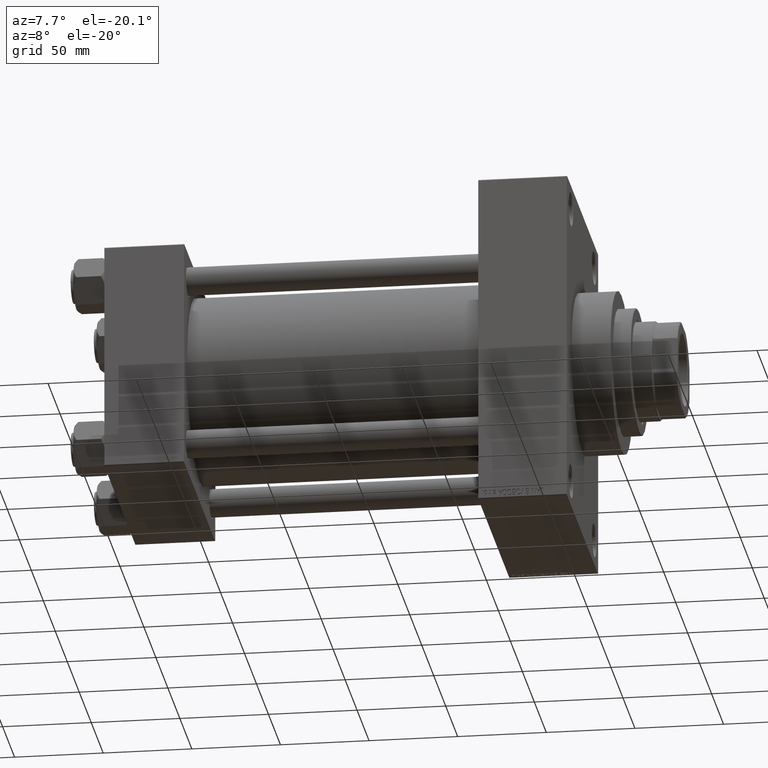
[diagram: clean part render]
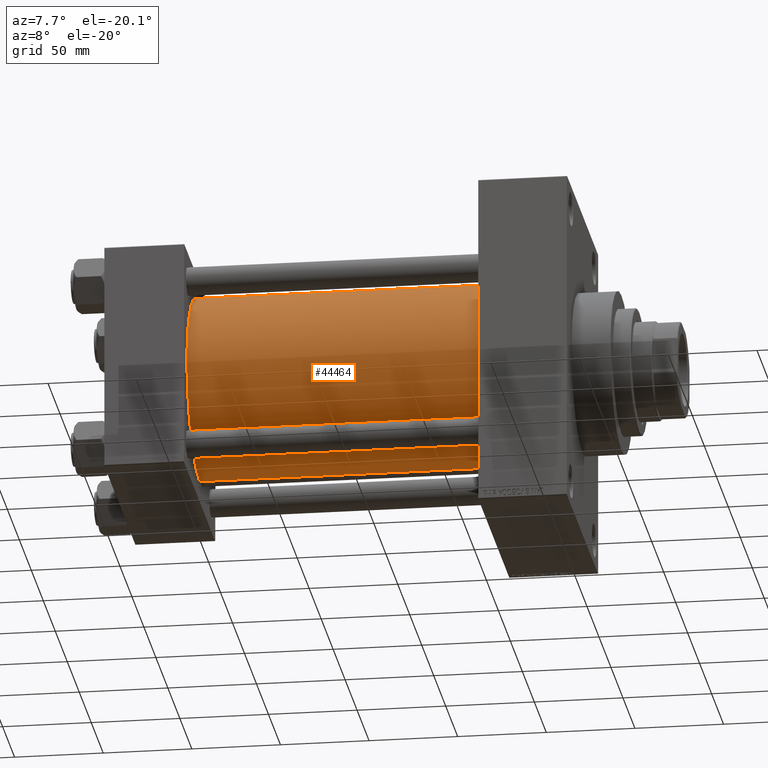
[diagram: same view with one face highlighted and labeled with its STEP entity id]
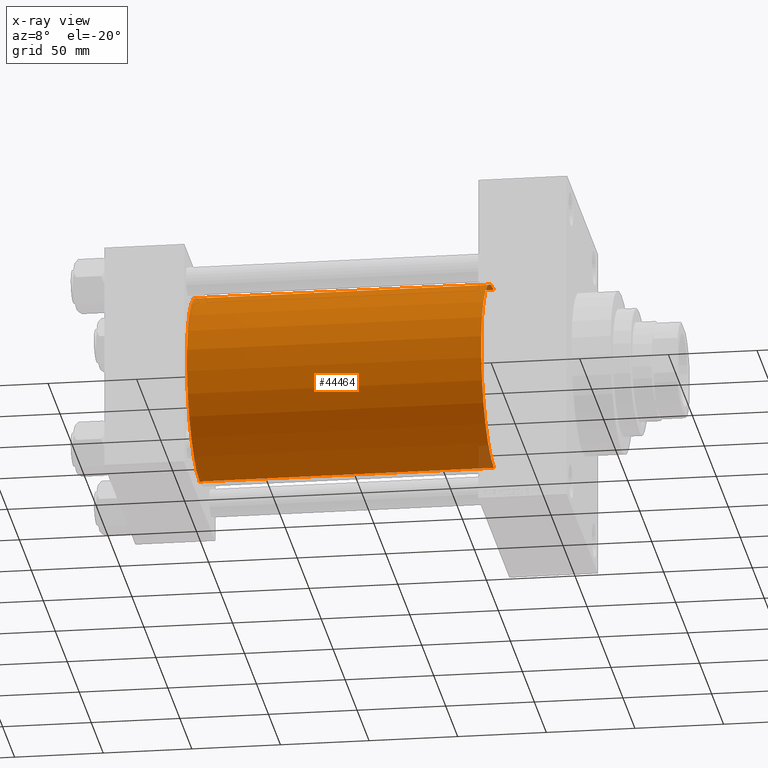
[diagram: x-ray of the same camera — body ghosted, the highlighted face saturated]
A machine part, auxiliary view. The second image highlights one B-rep face of the part: STEP entity #44464.
The next image is the same camera in x-ray: the body ghosted, the highlighted face saturated — about 1% of this face is hidden behind the body in this view.
In plain terms, the highlighted cylindrical surface (partial cylindrical patch) has radius 53 mm, axis along (-1, -0, -0).
Its self-contained STEP definition (entity closure, byte-faithful):
#333 = CARTESIAN_POINT ( 'NONE',  ( 211.0000000000000284, -2.602085213965210642E-15, 53.00000000000000711 ) ) ;
#1369 = ORIENTED_EDGE ( 'NONE', *, *, #40849, .F. ) ;
#3506 = VECTOR ( 'NONE', #44516, 1000.000000000000000 ) ;
#3714 = CIRCLE ( 'NONE', #38407, 53.00000000000000711 ) ;
#4061 = AXIS2_PLACEMENT_3D ( 'NONE', #44790, #11708, #30308 ) ;
#4642 = DIRECTION ( 'NONE',  ( 0.000000000000000000, 0.000000000000000000, 1.000000000000000000 ) ) ;
#5765 = EDGE_CURVE ( 'NONE', #44122, #15110, #44284, .T. ) ;
#6984 = CARTESIAN_POINT ( 'NONE',  ( 211.0000000000000284, 3.888542821515762466E-15, -53.00000000000000711 ) ) ;
#8258 = CARTESIAN_POINT ( 'NONE',  ( 44.99999999999998579, -2.602085213965210642E-15, 53.00000000000000711 ) ) ;
#11708 = DIRECTION ( 'NONE',  ( -1.000000000000000000, -0.000000000000000000, -0.000000000000000000 ) ) ;
#14697 = DIRECTION ( 'NONE',  ( -1.000000000000000000, -0.000000000000000000, -0.000000000000000000 ) ) ;
#15066 = EDGE_CURVE ( 'NONE', #15110, #28120, #3714, .T. ) ;
#15110 = VERTEX_POINT ( 'NONE', #8258 ) ;
#15571 = FACE_OUTER_BOUND ( 'NONE', #43572, .T. ) ;
#17899 = VECTOR ( 'NONE', #14697, 1000.000000000000000 ) ;
#18093 = LINE ( 'NONE', #6984, #17899 ) ;
#18384 = CIRCLE ( 'NONE', #41502, 53.00000000000000711 ) ;
#21635 = DIRECTION ( 'NONE',  ( 1.000000000000000000, 0.000000000000000000, 0.000000000000000000 ) ) ;
#27094 = CARTESIAN_POINT ( 'NONE',  ( 211.0000000000000284, 3.888542821515762466E-15, -53.00000000000000711 ) ) ;
#27326 = EDGE_CURVE ( 'NONE', #44122, #46763, #18384, .T. ) ;
#28101 = ORIENTED_EDGE ( 'NONE', *, *, #5765, .T. ) ;
#28120 = VERTEX_POINT ( 'NONE', #34223 ) ;
#29356 = DIRECTION ( 'NONE',  ( 0.000000000000000000, 0.000000000000000000, -1.000000000000000000 ) ) ;
#30308 = DIRECTION ( 'NONE',  ( 0.000000000000000000, 0.000000000000000000, 1.000000000000000000 ) ) ;
#34223 = CARTESIAN_POINT ( 'NONE',  ( 44.99999999999998579, 3.888542821515762466E-15, -53.00000000000000711 ) ) ;
#37256 = CARTESIAN_POINT ( 'NONE',  ( 44.99999999999998579, -2.602085213965210642E-15, 0.000000000000000000 ) ) ;
#38407 = AXIS2_PLACEMENT_3D ( 'NONE', #37256, #41822, #4642 ) ;
#38566 = ORIENTED_EDGE ( 'NONE', *, *, #15066, .T. ) ;
#39213 = ORIENTED_EDGE ( 'NONE', *, *, #27326, .F. ) ;
#39574 = CARTESIAN_POINT ( 'NONE',  ( 211.0000000000000284, -2.602085213965210642E-15, 53.00000000000000711 ) ) ;
#40208 = CARTESIAN_POINT ( 'NONE',  ( 211.0000000000000284, -2.602085213965210642E-15, 0.000000000000000000 ) ) ;
#40849 = EDGE_CURVE ( 'NONE', #46763, #28120, #18093, .T. ) ;
#41502 = AXIS2_PLACEMENT_3D ( 'NONE', #40208, #21635, #29356 ) ;
#41822 = DIRECTION ( 'NONE',  ( 1.000000000000000000, -0.000000000000000000, 0.000000000000000000 ) ) ;
#43572 = EDGE_LOOP ( 'NONE', ( #1369, #39213, #28101, #38566 ) ) ;
#44076 = CYLINDRICAL_SURFACE ( 'NONE', #4061, 53.00000000000000711 ) ;
#44122 = VERTEX_POINT ( 'NONE', #39574 ) ;
#44284 = LINE ( 'NONE', #333, #3506 ) ;
#44464 = ADVANCED_FACE ( 'NONE', ( #15571 ), #44076, .T. ) ;
#44516 = DIRECTION ( 'NONE',  ( -1.000000000000000000, -0.000000000000000000, -0.000000000000000000 ) ) ;
#44790 = CARTESIAN_POINT ( 'NONE',  ( 211.0000000000000284, -2.602085213965210642E-15, 0.000000000000000000 ) ) ;
#46763 = VERTEX_POINT ( 'NONE', #27094 ) ;